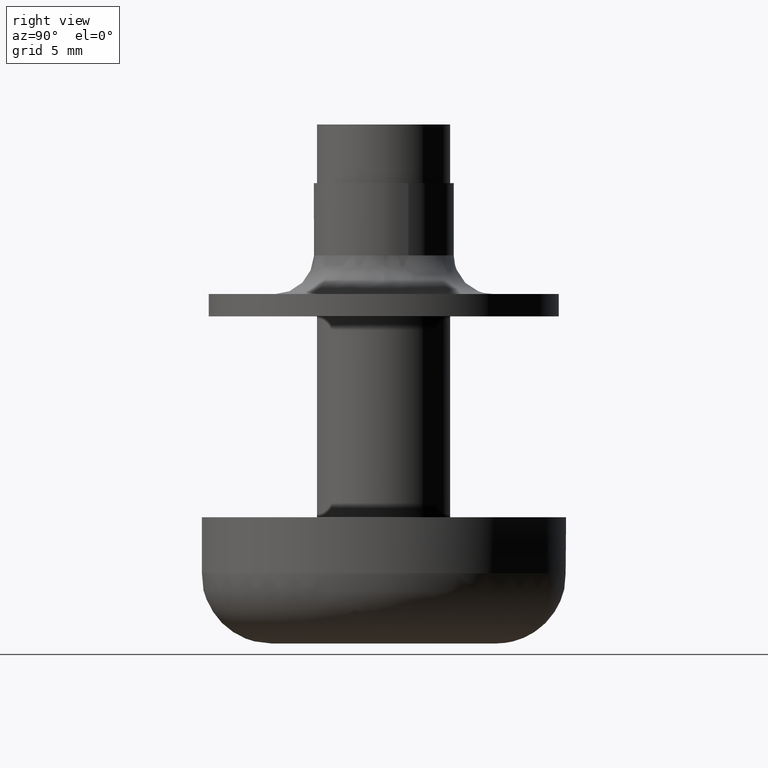
[diagram: clean part render]
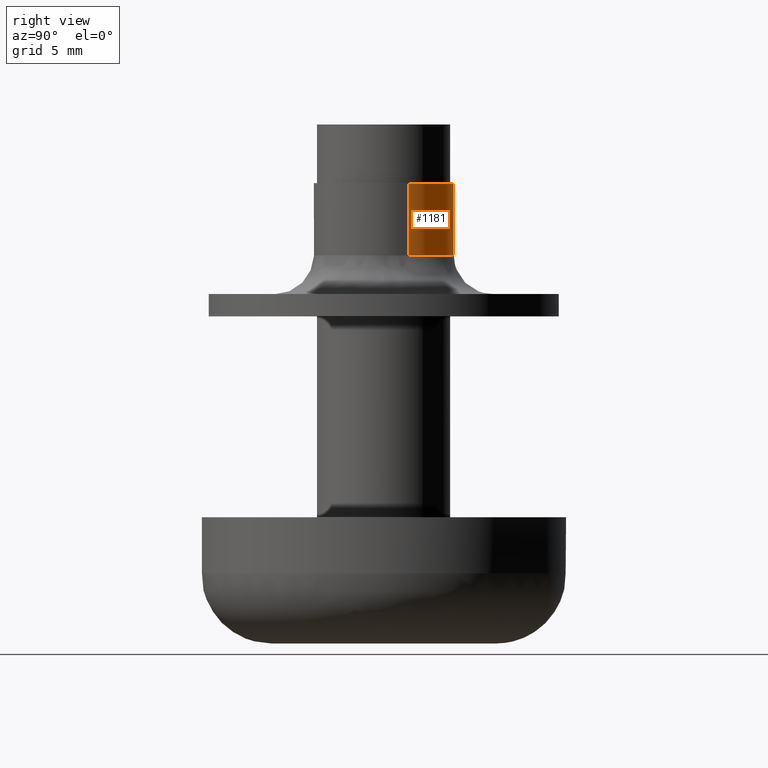
[diagram: same view with one face highlighted and labeled with its STEP entity id]
A machine part, right view. The second image highlights one B-rep face of the part: STEP entity #1181.
In plain terms, the highlighted face is a freeform B-spline surface patch.
Its self-contained STEP definition (entity closure, byte-faithful):
#1003=CARTESIAN_POINT('',(4.680719004476762,1.758086915121115,-9.330715000039447));
#1004=VERTEX_POINT('',#1003);
#1020=CARTESIAN_POINT('',(4.680718990786204,1.758086951570838,-4.180715000000000));
#1021=VERTEX_POINT('',#1020);
#1022=CARTESIAN_POINT('',(4.680718990786204,1.758086951570838,-4.180715000000000));
#1023=CARTESIAN_POINT('',(4.680719004476762,1.758086915121115,-9.330715000039447));
#1024=QUASI_UNIFORM_CURVE('',1,(#1022,#1023),.UNSPECIFIED.,.F.,.U.);
#1025=EDGE_CURVE('',#1021,#1004,#1024,.T.);
#1059=CARTESIAN_POINT('',(-0.305233602636164,4.990674548369059,-4.180715000000001));
#1060=VERTEX_POINT('',#1059);
#1074=CARTESIAN_POINT('',(-0.305233489113855,4.990674555311964,-9.330714999999906));
#1075=VERTEX_POINT('',#1074);
#1076=CARTESIAN_POINT('',(-0.305233602636164,4.990674548369059,-4.180715000000001));
#1077=CARTESIAN_POINT('',(-0.305233489113855,4.990674555311964,-9.330714999999906));
#1078=QUASI_UNIFORM_CURVE('',1,(#1076,#1077),.UNSPECIFIED.,.F.,.U.);
#1079=EDGE_CURVE('',#1060,#1075,#1078,.T.);
#1129=CARTESIAN_POINT('',(-0.333399132897416,4.988951870756991,-4.051964999998466));
#1130=CARTESIAN_POINT('',(-0.319337384323126,4.989811924143691,-4.051964999998465));
#1131=CARTESIAN_POINT('',(3.381847909015330,5.216186114346706,-4.051964999998464));
#1132=CARTESIAN_POINT('',(4.686201082232667,1.743491495485839,-4.051964999998466));
#1133=CARTESIAN_POINT('',(4.691675776932884,1.728915732405931,-4.051964999998464));
#1134=CARTESIAN_POINT('',(-0.333399132897416,4.988951870756991,-9.462683750062944));
#1135=CARTESIAN_POINT('',(-0.319337384323126,4.989811924143691,-9.462683750062942));
#1136=CARTESIAN_POINT('',(3.381847909015330,5.216186114346706,-9.462683750062940));
#1137=CARTESIAN_POINT('',(4.686201082232667,1.743491495485839,-9.462683750062940));
#1138=CARTESIAN_POINT('',(4.691675776932884,1.728915732405931,-9.462683750062942));
#1146=(BOUNDED_SURFACE()B_SPLINE_SURFACE(2,1,((#1129,#1134),(#1130,#1135),(#1131,#1136),(#1132,#1137),(#1133,#1138)),.UNSPECIFIED.,.F.,.F.,.U.)B_SPLINE_SURFACE_WITH_KNOTS((3,1,1,3),(2,2),(0.0,0.032900578360631,6.615144197793860,6.648058709556064),(0.0,5.410718750064476),.UNSPECIFIED.)GEOMETRIC_REPRESENTATION_ITEM()RATIONAL_B_SPLINE_SURFACE(((1.002342388244256,1.002342388244256),(1.001171194122128,1.001171194122128),(0.765685424949238,0.765685424949238),(0.906977184053540,0.906977184053540),(0.907680198127385,0.907680198127385)))REPRESENTATION_ITEM('')SURFACE());
#1147=CARTESIAN_POINT('',(-0.305233489113854,4.990674555311964,-9.330714999999906));
#1148=CARTESIAN_POINT('',(-0.152759199303427,5.0,-9.330715000000000));
#1149=CARTESIAN_POINT('',(0.0,5.0,-9.330715000000000));
#1150=CARTESIAN_POINT('',(3.463050315322535,5.0,-9.330714999999998));
#1151=CARTESIAN_POINT('',(4.680719004476763,1.758086915121115,-9.330715000039447));
#1159=(BOUNDED_CURVE()B_SPLINE_CURVE(2,(#1147,#1148,#1149,#1150,#1151),.UNSPECIFIED.,.F.,.U.)B_SPLINE_CURVE_WITH_KNOTS((3,2,3),(0.239333280617386,0.250000000000000,0.440284270676763),.UNSPECIFIED.)CURVE()GEOMETRIC_REPRESENTATION_ITEM()RATIONAL_B_SPLINE_CURVE((0.976072724013277,0.987503160903386,1.0,0.777068109887651,0.893499676740267))REPRESENTATION_ITEM(''));
#1160=EDGE_CURVE('',#1075,#1004,#1159,.T.);
#1161=ORIENTED_EDGE('',*,*,#1160,.F.);
#1162=ORIENTED_EDGE('',*,*,#1079,.F.);
#1163=CARTESIAN_POINT('',(-0.305233602636164,4.990674548369059,-4.180715000000001));
#1164=CARTESIAN_POINT('',(-0.152759256223718,5.0,-4.180715000000001));
#1165=CARTESIAN_POINT('',(0.0,5.0,-4.180715000000000));
#1166=CARTESIAN_POINT('',(3.463050286515551,5.0,-4.180714999999999));
#1167=CARTESIAN_POINT('',(4.680718990786204,1.758086951570838,-4.180715000000000));
#1175=(BOUNDED_CURVE()B_SPLINE_CURVE(2,(#1163,#1164,#1165,#1166,#1167),.UNSPECIFIED.,.F.,.U.)B_SPLINE_CURVE_WITH_KNOTS((3,2,3),(0.239333276692482,0.250000000000000,0.440284269446775),.UNSPECIFIED.)CURVE()GEOMETRIC_REPRESENTATION_ITEM()RATIONAL_B_SPLINE_CURVE((0.976072715601436,0.987503156305074,1.0,0.777068111328671,0.893499675235051))REPRESENTATION_ITEM(''));
#1176=EDGE_CURVE('',#1060,#1021,#1175,.T.);
#1177=ORIENTED_EDGE('',*,*,#1176,.T.);
#1178=ORIENTED_EDGE('',*,*,#1025,.T.);
#1179=EDGE_LOOP('',(#1161,#1162,#1177,#1178));
#1180=FACE_OUTER_BOUND('',#1179,.T.);
#1181=ADVANCED_FACE('',(#1180),#1146,.T.);